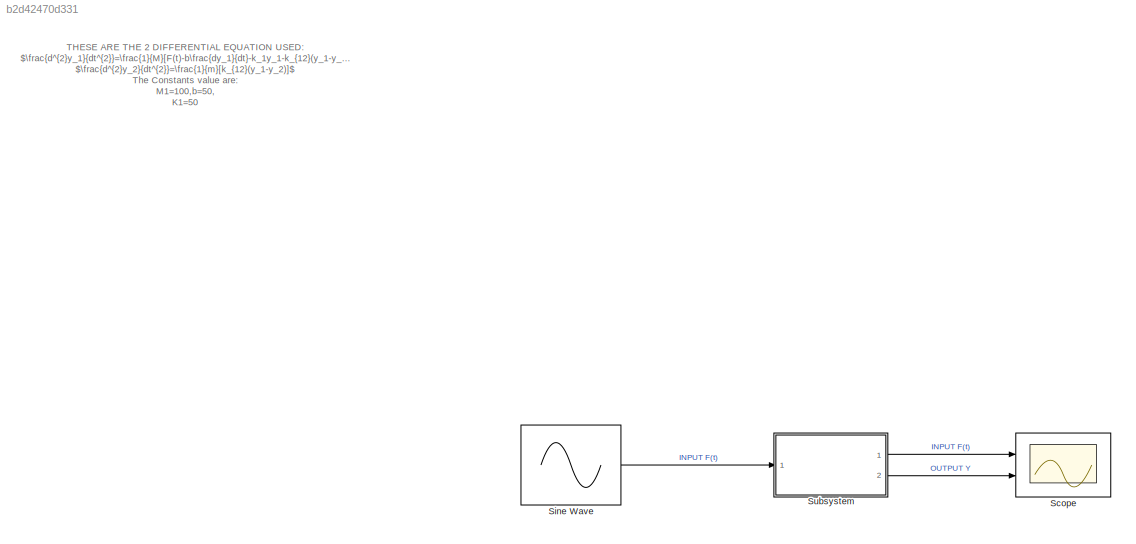
MODEL slx_b2d42470d331
KIND model
CONFIG AbsTol = auto
CONFIG EnableMultiTasking = off
CONFIG FixedStep = auto
CONFIG MaxStep = 0.02
CONFIG MinStep = auto
CONFIG RelTol = 1e-3
CONFIG SampleTimeConstraint = Unconstrained
CONFIG SolverName = VariableStepAuto
CONFIG StartTime = 0.0
CONFIG StopTime = 10.0
BLOCK [Scope] Scope
  Floating = off
  NumInputPorts = 2
  Ports = [2]
  ScopeSpecificationString = Simulink.scopes.TimeScopeBlockCfg('CurrentConfiguration', extmgr.ConfigurationSet(extmgr.Configuration('Core','General UI',true),extmgr.Configuration('Core','Source UI',true),extmgr.Configuration('Sources','WiredSimulink',true),extmgr.Configuration('Visuals','Time Domain',true,'SerializedDisplays',{struct('MinYLimReal','-3.74997','MaxYLimReal','3.74998','YLabelReal','','MinYLimMag','0.00000','MaxY...<+2048ch>
BLOCK [Sin] Sine Wave
  Amplitude = 3
  Frequency = 10
  Ports = [0, 1]
  SampleTime = 0
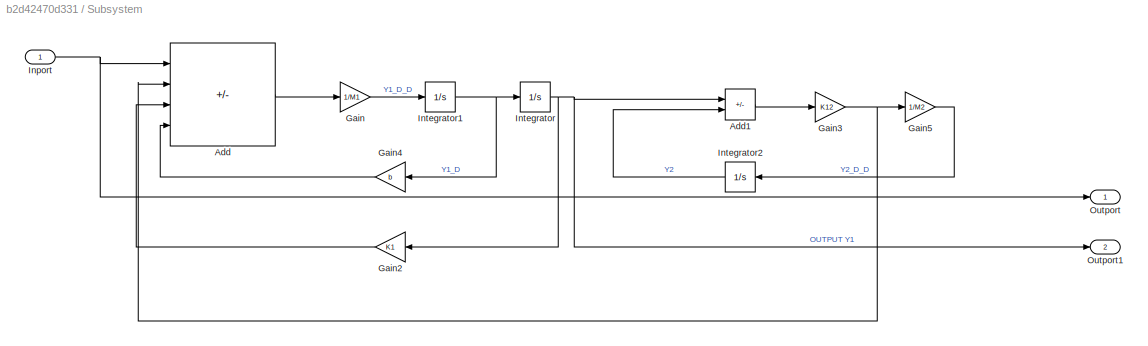
BLOCK [SubSystem] Subsystem
  Ports = [1, 2]
  RequestExecContextInheritance = off
BLOCK [Sum] Subsystem/Add
  IconShape = rectangular
  Inputs = +---
  Ports = [4, 1]
BLOCK [Sum] Subsystem/Add1
  IconShape = rectangular
  Inputs = +-
  Ports = [2, 1]
BLOCK [Gain] Subsystem/Gain
  Gain = 1/M1
BLOCK [Gain] Subsystem/Gain2
  Gain = K1
BLOCK [Gain] Subsystem/Gain3
  Gain = K12
BLOCK [Gain] Subsystem/Gain4
  Gain = b
BLOCK [Gain] Subsystem/Gain5
  Gain = 1/M2
BLOCK [Inport] Subsystem/Inport
BLOCK [Integrator] Subsystem/Integrator
  Ports = [1, 1]
BLOCK [Integrator] Subsystem/Integrator1
  Ports = [1, 1]
BLOCK [Integrator] Subsystem/Integrator2
  Ports = [1, 1]
BLOCK [Outport] Subsystem/Outport
BLOCK [Outport] Subsystem/Outport1
  Port = 2
ANNOTATION (root): THESE ARE THE 2 DIFFERENTIAL EQUATION USED: $\frac{d^{2}y_1}{dt^{2}}=\frac{1}{M}[F(t)-b\frac{dy_1}{dt}-k_1y_1-k_{12}(y_1-y_2)]$ $\frac{d^{2}y_2}{dt^{2}}=\frac{1}{m}[k_{12}(y_1-y_2)]$ The Constants value are: M1=100,b=50, K1=50 Value of K12 and M2 to be found
LINE Sine Wave:1 -> Subsystem:1
LINE Subsystem/Add1:1 -> Subsystem/Gain3:1
LINE Subsystem/Add:1 -> Subsystem/Gain:1
LINE Subsystem/Gain2:1 -> Subsystem/Add:3
NET Subsystem/Gain3:1 -> Subsystem/Add:2, Subsystem/Gain5:1
LINE Subsystem/Gain4:1 -> Subsystem/Add:4
LINE Subsystem/Gain5:1 -> Subsystem/Integrator2:1
LINE Subsystem/Gain:1 -> Subsystem/Integrator1:1
NET Subsystem/Inport:1 -> Subsystem/Add:1, Subsystem/Outport:1
NET Subsystem/Integrator1:1 -> Subsystem/Gain4:1, Subsystem/Integrator:1
LINE Subsystem/Integrator2:1 -> Subsystem/Add1:2
NET Subsystem/Integrator:1 -> Subsystem/Add1:1, Subsystem/Gain2:1, Subsystem/Outport1:1
LINE Subsystem:1 -> Scope:1
LINE Subsystem:2 -> Scope:2
note: NET lines group one-source signal fan-out (src -> all destinations, sorted); 1:1 wires keep LINE
